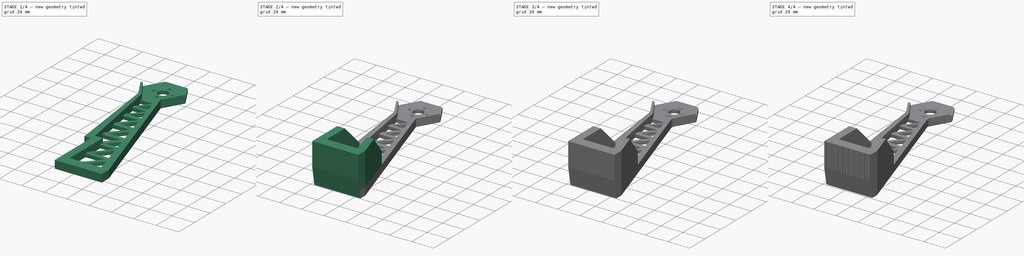
[diagram: build sequence overview — one tinted view per stage of 4, left to right]
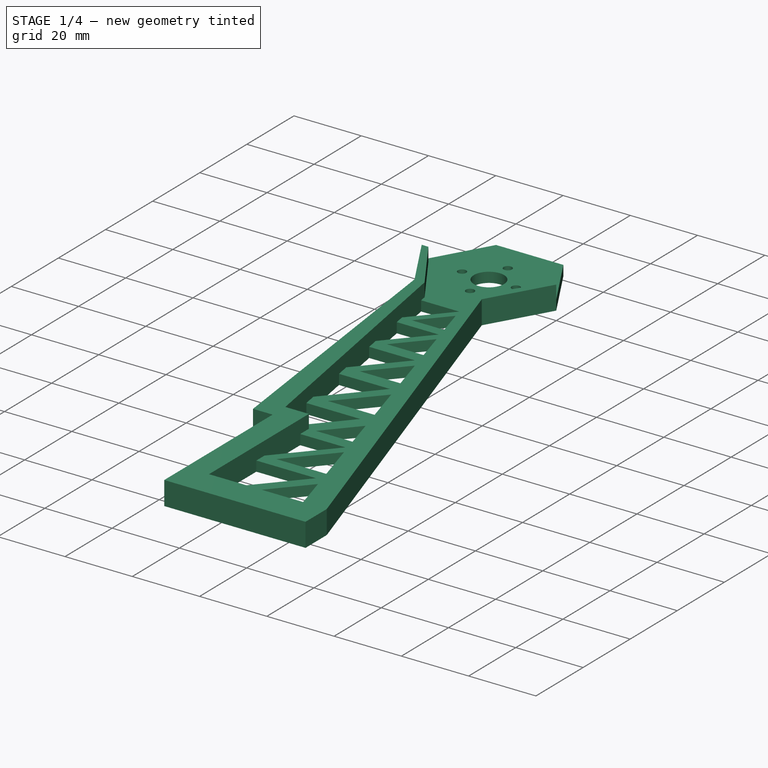
[diagram: stage 1 of 4 — iso view after this stage's code; geometry added in this stage tinted green]
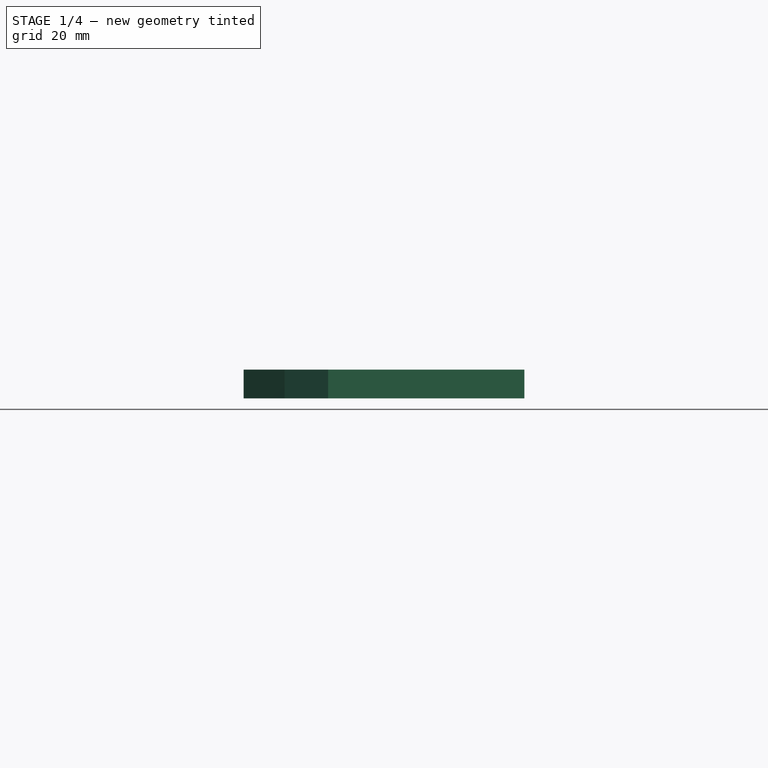
[diagram: stage 1 of 4 — front view after this stage's code; geometry added in this stage tinted green]
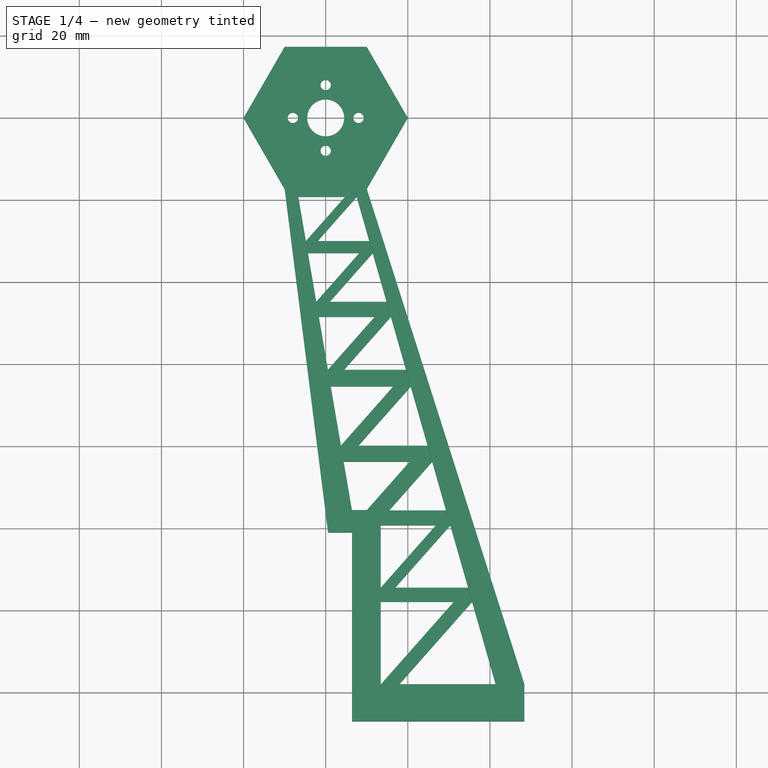
[diagram: stage 1 of 4 — top view after this stage's code; geometry added in this stage tinted green]
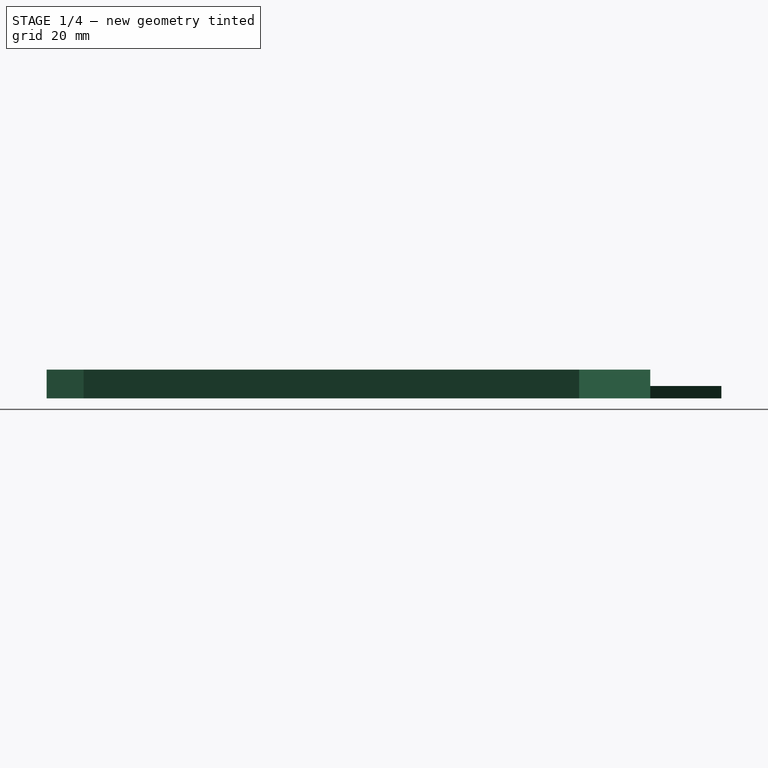
[diagram: stage 1 of 4 — right view after this stage's code; geometry added in this stage tinted green]
FCSTD DOCUMENT  (FreeCAD 0.16R6706 (Git))
Label: motor_mount
License: All rights reserved
LicenseURL: http://en.wikipedia.org/wiki/All_rights_reserved
objects: Sketcher::SketchObject×6, PartDesign::Chamfer×4, PartDesign::Pad×3, PartDesign::Pocket×3, PartDesign::Fillet×2
note: 24 computed .brp shape members not serialized (recipe doc carries the construction recipe); baked Part::Feature solids carry a one-line shape summary decoded from their .brp

FEATURE [Sketcher::SketchObject] Sketch
  sketch-geometry (21):
    g0: Circle CenterX=0 CenterY=8 CenterZ=0 NormalX=0 NormalY=0 NormalZ=1 Radius=1.25
    g1: Circle CenterX=8 CenterY=0 CenterZ=0 NormalX=0 NormalY=0 NormalZ=1 Radius=1.25
    g2: Circle CenterX=0 CenterY=-8 CenterZ=0 NormalX=0 NormalY=0 NormalZ=1 Radius=1.25
    g3: Circle CenterX=-8 CenterY=0 CenterZ=0 NormalX=0 NormalY=0 NormalZ=1 Radius=1.25
    g4: LineSegment [constr] StartX=0 StartY=8 StartZ=0 EndX=0 EndY=-8 EndZ=0
    g5: LineSegment [constr] StartX=8 StartY=0 StartZ=0 EndX=-8 EndY=0 EndZ=0
    g6: LineSegment StartX=10 StartY=17.3205 StartZ=0 EndX=-10 EndY=17.3205 EndZ=0
    g7: LineSegment StartX=-10 StartY=17.3205 StartZ=0 EndX=-20 EndY=0 EndZ=0
    g8: LineSegment StartX=-20 StartY=0 StartZ=0 EndX=-10 EndY=-17.3205 EndZ=0
    g9: LineSegment [constr] StartX=-10 StartY=-17.3205 StartZ=0 EndX=10 EndY=-17.3205 EndZ=0
    g10: LineSegment StartX=10 StartY=-17.3205 StartZ=0 EndX=20 EndY=0 EndZ=0
    g11: LineSegment StartX=20 StartY=0 StartZ=0 EndX=10 EndY=17.3205 EndZ=0
    g12: Circle [constr] CenterX=0 CenterY=0 CenterZ=0 NormalX=0 NormalY=0 NormalZ=1 Radius=20
    g13: LineSegment [constr] StartX=-10 StartY=-17.3205 StartZ=0 EndX=6.4 EndY=-147 EndZ=0
    g14: LineSegment StartX=6.4 StartY=-147 StartZ=0 EndX=48.4 EndY=-147 EndZ=0
    g15: LineSegment StartX=48.4 StartY=-138 StartZ=0 EndX=10 EndY=-17.3205 EndZ=0
    g16: Circle CenterX=0 CenterY=0 CenterZ=0 NormalX=0 NormalY=0 NormalZ=1 Radius=4.5
    g17: LineSegment StartX=6.4 StartY=-147 StartZ=0 EndX=6.4 EndY=-101 EndZ=0
    g18: LineSegment StartX=6.4 StartY=-101 StartZ=0 EndX=0.582581 EndY=-101 EndZ=0
    g19: LineSegment StartX=0.582581 StartY=-101 StartZ=0 EndX=-10 EndY=-17.3205 EndZ=0
    g20: LineSegment StartX=48.4 StartY=-147 StartZ=0 EndX=48.4 EndY=-138 EndZ=0
  constraints (53):
    c: PointOnObject(g0,g-2)
    c: PointOnObject(g1,g-1)
    c: PointOnObject(g2,g-2)
    c: PointOnObject(g3,g-1)
    c: Symmetric(g0,g2,g-1)
    c: Symmetric(g1,g3,g-2)
    c: Radius(g3) = 1.25
    c: Equal(g3,g0)
    c: Equal(g0,g1)
    c: Equal(g1,g2)
    c: Coincident(g4,g0)
    c: Coincident(g4,g2)
    c: Coincident(g5,g1)
    c: Coincident(g5,g3)
    c: Equal(g5,g4)
    c: Distance(g4) = 16
    c: Coincident(g6,g7)
    c: Coincident(g7,g8)
    c: Coincident(g8,g9)
    c: Coincident(g9,g10)
    c: Coincident(g10,g11)
    c: Coincident(g11,g6)
    c: Equal(g6, g7-g11) x5
    c: PointOnObject(g6,g12)
    c: PointOnObject(g7,g12)
    c: PointOnObject(g8,g12)
    c: PointOnObject(g9,g12)
    c: PointOnObject(g10,g12)
    c: PointOnObject(g11,g12)
    c: Coincident(g12,g-1)
    c: PointOnObject(g10,g-1)
    c: Radius(g12) = 20
    c: Coincident(g8,g13)
    c: Coincident(g13,g14)
    c: Horizontal(g14)
    c: Coincident(g15,g9)
    c: Coincident(g16,g-1)
    c: Radius(g16) = 4.5
    c: DistanceY(g13,g-1) = 147
    c: DistanceX(g-1,g13) = 6.4
    c: Coincident(g17,g13)
    c: Vertical(g17)
    c: Distance(g17) = 46
    c: Coincident(g17,g18)
    c: PointOnObject(g18,g13)
    c: Horizontal(g18)
    c: Coincident(g18,g19)
    c: Coincident(g19,g8)
    c: Vertical(g20)
    c: Coincident(g15,g20)
    c: Coincident(g14,g20)
    c: Distance(g14) = 42
    c: Distance(g20) = 9
FEATURE [PartDesign::Pad] Pad
  Length = 3
  Length2 = 100
  Sketch = -> Sketch
  Type = 0
FEATURE [Sketcher::SketchObject] Sketch001
  ExternalGeometry = -> [Pad]
  Placement = pos=(0,0,3) rot=(0,0,1;0rad)
  Support = -> Pad [Face18]
  sketch-geometry (26):
    g0: LineSegment [constr] StartX=-10 StartY=-17.3205 StartZ=0 EndX=-7 EndY=-17.3205 EndZ=0
    g1: LineSegment [constr] StartX=10 StartY=-17.3205 StartZ=0 EndX=7 EndY=-17.3205 EndZ=0
    g2: LineSegment [constr] StartX=48.4 StartY=-147 StartZ=0 EndX=41.4 EndY=-147 EndZ=0
    g3: LineSegment [constr] StartX=6.4 StartY=-147 StartZ=0 EndX=13.4 EndY=-147 EndZ=0
    g4: LineSegment [constr] StartX=48.4 StartY=-138 StartZ=0 EndX=6.4 EndY=-138 EndZ=0
    g5: LineSegment StartX=-20 StartY=0 StartZ=0 EndX=-18 EndY=0 EndZ=0
    g6: LineSegment StartX=-18 StartY=0 StartZ=0 EndX=-7 EndY=-17.3205 EndZ=0
    g7: LineSegment StartX=-7 StartY=-17.3205 StartZ=0 EndX=6.4 EndY=-95.6026 EndZ=0
    g8: LineSegment StartX=6.4 StartY=-95.6026 StartZ=0 EndX=13.4 EndY=-95.6026 EndZ=0
    g9: LineSegment StartX=13.4 StartY=-95.6026 StartZ=0 EndX=13.4 EndY=-138 EndZ=0
    g10: LineSegment StartX=13.4 StartY=-138 StartZ=0 EndX=41.4 EndY=-138 EndZ=0
    g11: LineSegment StartX=41.4 StartY=-138 StartZ=0 EndX=7 EndY=-17.3205 EndZ=0
    g12: LineSegment StartX=7 StartY=-17.3205 StartZ=0 EndX=18 EndY=0 EndZ=0
    g13: LineSegment StartX=18 StartY=0 StartZ=0 EndX=20 EndY=0 EndZ=0
    g14: LineSegment StartX=20 StartY=0 StartZ=0 EndX=10 EndY=-17.3205 EndZ=0
    g15: LineSegment StartX=10 StartY=-17.3205 StartZ=0 EndX=48.4 EndY=-138 EndZ=0
    g16: LineSegment StartX=48.4 StartY=-138 StartZ=0 EndX=48.4 EndY=-147 EndZ=0
    g17: LineSegment StartX=48.4 StartY=-147 StartZ=0 EndX=6.4 EndY=-147 EndZ=0
    g18: LineSegment StartX=6.4 StartY=-147 StartZ=0 EndX=6.4 EndY=-101 EndZ=0
    g19: LineSegment StartX=6.4 StartY=-101 StartZ=0 EndX=0.582581 EndY=-101 EndZ=0
    g20: LineSegment StartX=0.582581 StartY=-101 StartZ=0 EndX=-10 EndY=-17.3205 EndZ=0
    g21: LineSegment StartX=-10 StartY=-17.3205 StartZ=0 EndX=-20 EndY=0 EndZ=0
    g22: LineSegment [constr] StartX=6.4 StartY=-95.6026 StartZ=0 EndX=-0.1 EndY=-95.6026 EndZ=0
    g23: LineSegment [constr] StartX=41.4 StartY=-147 StartZ=0 EndX=41.4 EndY=-138 EndZ=0
    g24: LineSegment [constr] StartX=13.4 StartY=-147 StartZ=0 EndX=13.4 EndY=-138 EndZ=0
    g25: LineSegment [constr] StartX=6.4 StartY=-95.6026 StartZ=0 EndX=6.4 EndY=-101 EndZ=0
  constraints (64):
    c: Coincident(g0,g-3)
    c: Horizontal(g0)
    c: Coincident(g1,g-5)
    c: Horizontal(g1)
    c: Equal(g1,g0)
    c: Distance(g1) = 3
    c: Coincident(g2,g-8)
    c: Horizontal(g2)
    c: Coincident(g3,g-9)
    c: Horizontal(g3)
    c: Distance(g2) = 7
    c: Coincident(g4,g-7)
    c: Horizontal(g4)
    c: DistanceX(g4,g3) = 0
    c: Equal(g3,g2)
    c: Coincident(g5,g-4)
    c: PointOnObject(g5,g-1)
    c: Coincident(g5,g6)
    c: Coincident(g6,g0)
    c: Coincident(g6,g7)
    c: Coincident(g7,g8)
    c: Horizontal(g8)
    c: Coincident(g8,g9)
    c: PointOnObject(g9,g4)
    c: Coincident(g9,g10)
    c: PointOnObject(g10,g4)
    c: Coincident(g10,g11)
    c: Coincident(g11,g1)
    c: Coincident(g11,g12)
    c: PointOnObject(g12,g-1)
    c: Coincident(g12,g13)
    c: Coincident(g13,g-6)
    c: Coincident(g13,g14)
    c: Coincident(g14,g1)
    c: Coincident(g14,g15)
    c: Coincident(g15,g4)
    c: Coincident(g15,g16)
    c: Coincident(g16,g2)
    c: Coincident(g16,g17)
    c: Coincident(g17,g3)
    c: Coincident(g17,g18)
    c: Coincident(g18,g-11)
    c: Coincident(g18,g19)
    c: Coincident(g19,g-10)
    c: Coincident(g19,g20)
    c: Coincident(g20,g0)
    c: Coincident(g20,g21)
    c: Coincident(g21,g5)
    c: Vertical(g9)
    c: Distance(g5) = 2
    c: Equal(g13,g5)
    c: Coincident(g22,g7)
    c: PointOnObject(g22,g20)
    c: Horizontal(g22)
    c: Distance(g22) = 6.5
    c: Vertical(g23)
    c: Coincident(g23,g10)
    c: Coincident(g24,g3)
    c: Coincident(g24,g9)
    c: Vertical(g24)
    c: Coincident(g2,g23)
    c: Coincident(g25,g7)
    c: Coincident(g25,g18)
    c: Vertical(g25)
FEATURE [PartDesign::Pad] Pad001
  Length = 4
  Length2 = 100
  Sketch = -> Sketch001
  Type = 0
FEATURE [Sketcher::SketchObject] Sketch002
  ExternalGeometry = -> [Pad001]
  Placement = pos=(0,0,3) rot=(0,0,1;0rad)
  Support = -> Pad001 [Face22]
  sketch-geometry (58):
    g0: LineSegment [constr] StartX=-7 StartY=-17.3205 StartZ=0 EndX=7 EndY=-17.3205 EndZ=0
    g1: LineSegment [constr] StartX=6.4 StartY=-95.6026 StartZ=0 EndX=13.4 EndY=-95.6026 EndZ=0
    g2: LineSegment StartX=4.6596 StartY=-19.2741 StartZ=0 EndX=-4.82886 EndY=-30.0042 EndZ=0
    g3: LineSegment StartX=-4.32086 StartY=-32.9719 StartZ=0 EndX=8.15283 EndY=-32.9719 EndZ=0
    g4: LineSegment StartX=11.4615 StartY=-32.9719 StartZ=0 EndX=1.01078 EndY=-44.7901 EndZ=0
    g5: LineSegment StartX=-1.66563 StartY=-48.4837 StartZ=0 EndX=11.9164 EndY=-48.4837 EndZ=0
    g6: LineSegment StartX=15.8831 StartY=-48.4837 StartZ=0 EndX=4.50388 EndY=-61.3519 EndZ=0
    g7: LineSegment StartX=1.2395 StartY=-65.4553 StartZ=0 EndX=16.4112 EndY=-65.4553 EndZ=0
    g8: LineSegment StartX=20.7209 StartY=-65.4553 StartZ=0 EndX=8.00982 EndY=-79.8297 EndZ=0
    g9: LineSegment StartX=4.37591 StartY=-83.778 StartZ=0 EndX=20.4123 EndY=-83.778 EndZ=0
    g10: LineSegment StartX=26.8149 StartY=-99.2677 StartZ=0 EndX=13.4 EndY=-114.438 EndZ=0
    g11: LineSegment StartX=16.9444 StartY=-114.438 StartZ=0 EndX=34.6836 EndY=-114.438 EndZ=0
    g12: LineSegment StartX=31.1597 StartY=-117.916 StartZ=0 EndX=13.4 EndY=-138 EndZ=0
    g13: LineSegment StartX=-6.66559 StartY=-19.2741 StartZ=0 EndX=4.6596 EndY=-19.2741 EndZ=0
    g14: LineSegment StartX=7.55688 StartY=-19.2741 StartZ=0 EndX=-1.93159 EndY=-30.0042 EndZ=0
    g15: LineSegment StartX=8.15283 StartY=-32.9719 StartZ=0 EndX=-2.29787 EndY=-44.7901 EndZ=0
    g16: LineSegment StartX=1.01078 StartY=-44.7901 StartZ=0 EndX=14.8303 EndY=-44.7901 EndZ=0
    g17: LineSegment StartX=11.9164 StartY=-48.4837 StartZ=0 EndX=0.53711 EndY=-61.3519 EndZ=0
    g18: LineSegment StartX=4.50388 StartY=-61.3519 StartZ=0 EndX=19.5513 EndY=-61.3519 EndZ=0
    g19: LineSegment StartX=16.4112 StartY=-65.4553 StartZ=0 EndX=3.70006 EndY=-79.8297 EndZ=0
    g20: LineSegment StartX=8.00982 StartY=-79.8297 StartZ=0 EndX=24.8184 EndY=-79.8297 EndZ=0
    g21: LineSegment StartX=20.4123 StartY=-83.778 StartZ=0 EndX=9.95594 EndY=-95.6026 EndZ=0
    g22: LineSegment StartX=25.9439 StartY=-83.778 StartZ=0 EndX=15.4875 EndY=-95.6026 EndZ=0
    g23: LineSegment StartX=13.4 StartY=-99.2677 StartZ=0 EndX=26.8149 EndY=-99.2677 EndZ=0
    g24: LineSegment StartX=30.3592 StartY=-99.2677 StartZ=0 EndX=16.9444 EndY=-114.438 EndZ=0
    g25: LineSegment StartX=13.4 StartY=-117.916 StartZ=0 EndX=31.1597 EndY=-117.916 EndZ=0
    g26: LineSegment StartX=35.6751 StartY=-117.916 StartZ=0 EndX=17.9154 EndY=-138 EndZ=0
    g27: LineSegment StartX=-1.93159 StartY=-30.0042 StartZ=0 EndX=10.6155 EndY=-30.0042 EndZ=0
    g28: LineSegment StartX=15.4875 StartY=-95.6026 StartZ=0 EndX=29.3145 EndY=-95.6026 EndZ=0
    g29: LineSegment [constr] StartX=4.6596 StartY=-19.2741 StartZ=0 EndX=7.55688 EndY=-19.2741 EndZ=0
    g30: LineSegment [constr] StartX=-1.93159 StartY=-30.0042 StartZ=0 EndX=-4.82886 EndY=-30.0042 EndZ=0
    g31: LineSegment [constr] StartX=8.15283 StartY=-32.9719 StartZ=0 EndX=11.4615 EndY=-32.9719 EndZ=0
    g32: LineSegment [constr] StartX=1.01078 StartY=-44.7901 StartZ=0 EndX=-2.29787 EndY=-44.7901 EndZ=0
    g33: LineSegment [constr] StartX=11.9164 StartY=-48.4837 StartZ=0 EndX=15.8831 EndY=-48.4837 EndZ=0
    g34: LineSegment [constr] StartX=4.50388 StartY=-61.3519 StartZ=0 EndX=0.53711 EndY=-61.3519 EndZ=0
    g35: LineSegment [constr] StartX=16.4112 StartY=-65.4553 StartZ=0 EndX=20.7209 EndY=-65.4553 EndZ=0
    g36: LineSegment [constr] StartX=8.00982 StartY=-79.8297 StartZ=0 EndX=3.70006 EndY=-79.8297 EndZ=0
    g37: LineSegment [constr] StartX=20.4123 StartY=-83.778 StartZ=0 EndX=25.9439 EndY=-83.778 EndZ=0
    g38: LineSegment [constr] StartX=15.4875 StartY=-95.6026 StartZ=0 EndX=13.4 EndY=-95.6026 EndZ=0
    g39: LineSegment [constr] StartX=26.8149 StartY=-99.2677 StartZ=0 EndX=30.3592 EndY=-99.2677 EndZ=0
    g40: LineSegment [constr] StartX=16.9444 StartY=-114.438 StartZ=0 EndX=13.4 EndY=-114.438 EndZ=0
    g41: LineSegment [constr] StartX=31.1597 StartY=-117.916 StartZ=0 EndX=35.6751 EndY=-117.916 EndZ=0
    g42: LineSegment StartX=-6.66559 StartY=-19.2741 StartZ=0 EndX=-4.82886 EndY=-30.0042 EndZ=0
    g43: LineSegment StartX=7.55688 StartY=-19.2741 StartZ=0 EndX=10.6155 EndY=-30.0042 EndZ=0
    g44: LineSegment StartX=-4.32086 StartY=-32.9719 StartZ=0 EndX=-2.29787 EndY=-44.7901 EndZ=0
    g45: LineSegment StartX=11.4615 StartY=-32.9719 StartZ=0 EndX=14.8303 EndY=-44.7901 EndZ=0
    g46: LineSegment StartX=-1.66563 StartY=-48.4837 StartZ=0 EndX=0.53711 EndY=-61.3519 EndZ=0
    g47: LineSegment StartX=15.8831 StartY=-48.4837 StartZ=0 EndX=19.5513 EndY=-61.3519 EndZ=0
    g48: LineSegment StartX=1.2395 StartY=-65.4553 StartZ=0 EndX=3.70006 EndY=-79.8297 EndZ=0
    g49: LineSegment StartX=20.7209 StartY=-65.4553 StartZ=0 EndX=24.8184 EndY=-79.8297 EndZ=0
    g50: LineSegment StartX=4.37591 StartY=-83.778 StartZ=0 EndX=6.4 EndY=-95.6026 EndZ=0
    g51: LineSegment StartX=6.4 StartY=-95.6026 StartZ=0 EndX=9.95594 EndY=-95.6026 EndZ=0
    g52: LineSegment StartX=25.9439 StartY=-83.778 StartZ=0 EndX=29.3145 EndY=-95.6026 EndZ=0
    g53: LineSegment StartX=13.4 StartY=-99.2677 StartZ=0 EndX=13.4 EndY=-114.438 EndZ=0
    g54: LineSegment StartX=30.3592 StartY=-99.2677 StartZ=0 EndX=34.6836 EndY=-114.438 EndZ=0
    g55: LineSegment StartX=13.4 StartY=-117.916 StartZ=0 EndX=13.4 EndY=-138 EndZ=0
    g56: LineSegment StartX=17.9154 StartY=-138 StartZ=0 EndX=41.4 EndY=-138 EndZ=0
    g57: LineSegment StartX=41.4 StartY=-138 StartZ=0 EndX=35.6751 EndY=-117.916 EndZ=0
  constraints (140):
    c: Coincident(g31,g3)
    c: Coincident(g3,g15)
    c: Coincident(g4,g16)
    c: Coincident(g4,g32)
    c: Coincident(g2,g13)
    c: Coincident(g2,g29)
    c: Coincident(g14,g27)
    c: Coincident(g14,g30)
    c: Coincident(g5,g17)
    c: Coincident(g6,g18)
    c: Coincident(g7,g19)
    c: Horizontal(g13)
    c: Horizontal(g27)
    c: Horizontal(g3)
    c: Horizontal(g16)
    c: Horizontal(g5)
    c: Horizontal(g18)
    c: Horizontal(g7)
    c: Horizontal(g20)
    c: Horizontal(g9)
    c: Horizontal(g28)
    c: Horizontal(g23)
    c: Horizontal(g11)
    c: Horizontal(g25)
    c: Parallel(g26,g12)
    c: Parallel(g12,g24)
    c: Parallel(g24,g10)
    c: Parallel(g10,g22)
    c: Parallel(g22,g21)
    c: Parallel(g21,g8)
    c: Parallel(g8,g19)
    c: Parallel(g19,g6)
    c: Parallel(g6,g17)
    c: Parallel(g17,g4)
    c: Parallel(g4,g15)
    c: Parallel(g15,g14)
    c: Parallel(g14,g2)
    c: Coincident(g14,g29)
    c: Horizontal(g29)
    c: Coincident(g2,g30)
    c: PointOnObject(g2,g-3)
    c: Horizontal(g30)
    c: PointOnObject(g13,g-3)
    c: PointOnObject(g14,g-4)
    c: PointOnObject(g27,g-4)
    c: PointOnObject(g3,g-3)
    c: PointOnObject(g31,g-4)
    c: Coincident(g15,g32)
    c: PointOnObject(g15,g-3)
    c: PointOnObject(g16,g-4)
    c: PointOnObject(g6,g-4)
    c: PointOnObject(g5,g-3)
    c: PointOnObject(g17,g-3)
    c: PointOnObject(g18,g-4)
    c: PointOnObject(g7,g-3)
    c: PointOnObject(g8,g-4)
    c: PointOnObject(g19,g-3)
    c: PointOnObject(g20,g-4)
    c: PointOnObject(g9,g-3)
    c: PointOnObject(g37,g-4)
    c: Coincident(g1,g-5)
    c: Coincident(g1,g-3)
    c: PointOnObject(g21,g1)
    c: PointOnObject(g52,g-4)
    c: PointOnObject(g28,g-4)
    c: PointOnObject(g23,g-5)
    c: PointOnObject(g24,g-4)
    c: PointOnObject(g10,g-5)
    c: PointOnObject(g25,g-5)
    c: PointOnObject(g11,g-4)
    c: PointOnObject(g26,g-4)
    c: PointOnObject(g26,g-6)
    c: Coincident(g12,g-6)
    c: Coincident(g12,g25)
    c: Coincident(g10,g23)
    c: Coincident(g9,g21)
    c: Coincident(g33,g5)
    c: Coincident(g33,g6)
    c: Horizontal(g33)
    c: Coincident(g34,g6)
    c: Coincident(g34,g17)
    c: Horizontal(g34)
    c: Coincident(g35,g7)
    c: Coincident(g35,g8)
    c: Horizontal(g35)
    c: Coincident(g36,g20)
    c: Coincident(g36,g19)
    c: Horizontal(g36)
    c: Coincident(g37,g9)
    c: Horizontal(g37)
    c: Coincident(g38,g28)
    c: Coincident(g38,g1)
    c: Horizontal(g38)
    c: Coincident(g39,g10)
    c: Coincident(g39,g24)
    c: Coincident(g40,g24)
    c: Coincident(g40,g10)
    c: Horizontal(g40)
    c: Coincident(g41,g12)
    c: Coincident(g41,g26)
    c: Horizontal(g41)
    c: Horizontal(g39)
    c: Coincident(g42,g13)
    c: Coincident(g42,g2)
    c: Coincident(g43,g14)
    c: Coincident(g43,g27)
    c: Coincident(g44,g3)
    c: Coincident(g44,g15)
    c: Coincident(g45,g4)
    c: Coincident(g45,g16)
    c: Coincident(g46,g5)
    c: Coincident(g46,g17)
    c: Coincident(g47,g6)
    c: Coincident(g47,g18)
    c: Coincident(g48,g7)
    c: Coincident(g48,g19)
    c: Coincident(g49,g8)
    c: Coincident(g49,g20)
    c: Coincident(g50,g9)
    c: Coincident(g50,g1)
    c: Coincident(g51,g1)
    c: Coincident(g51,g21)
    c: Coincident(g52,g22)
    c: Coincident(g53,g23)
    c: Coincident(g53,g10)
    c: Coincident(g54,g24)
    c: Coincident(g54,g11)
    c: Coincident(g55,g25)
    c: Coincident(g55,g12)
    c: Coincident(g56,g26)
    c: Coincident(g56,g-6)
    c: Coincident(g57,g56)
    c: Coincident(g57,g26)
    c: Coincident(g4,g31)
    c: Coincident(g22,g37)
    c: Coincident(g8,g20)
    c: Coincident(g11,g24)
    c: Coincident(g22,g28)
    c: Horizontal(g32)
    c: Horizontal(g31)
FEATURE [PartDesign::Pocket] Pocket
  Length = 0
  Sketch = -> Sketch002
  Type = 3
  UpToFace = -> Pad001 [Face1]
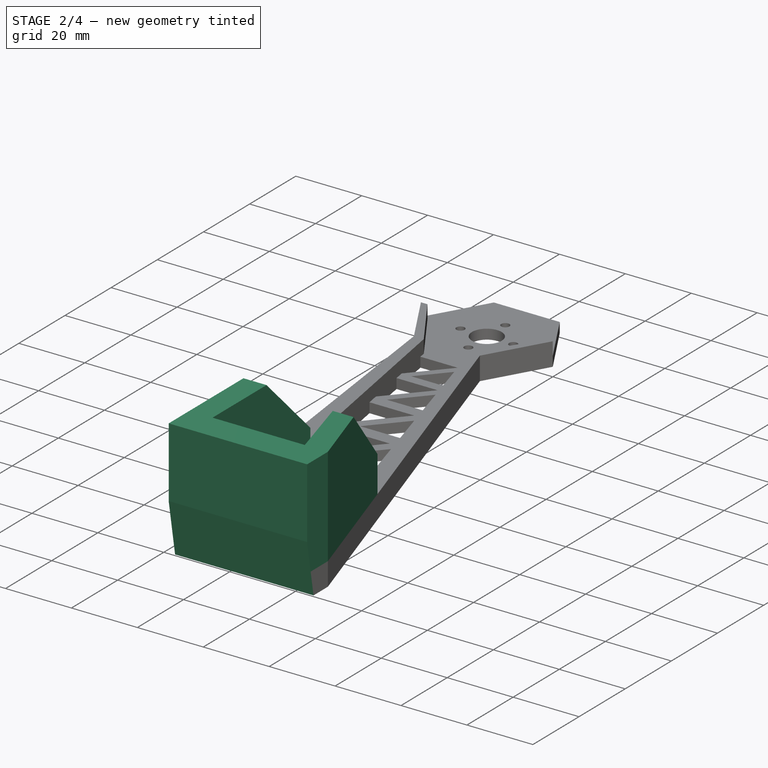
[diagram: stage 2 of 4 — iso view after this stage's code; geometry added in this stage tinted green]
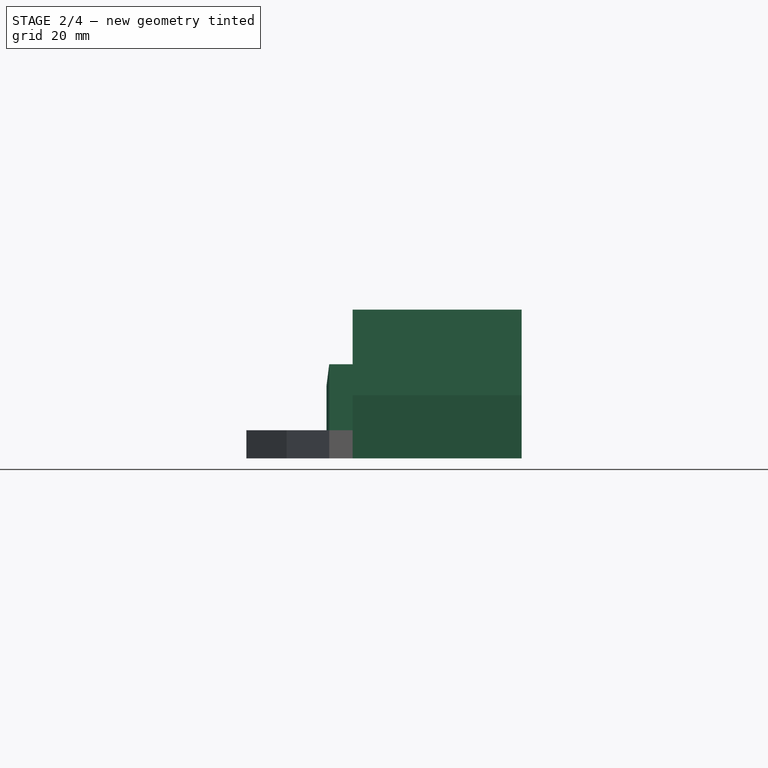
[diagram: stage 2 of 4 — front view after this stage's code; geometry added in this stage tinted green]
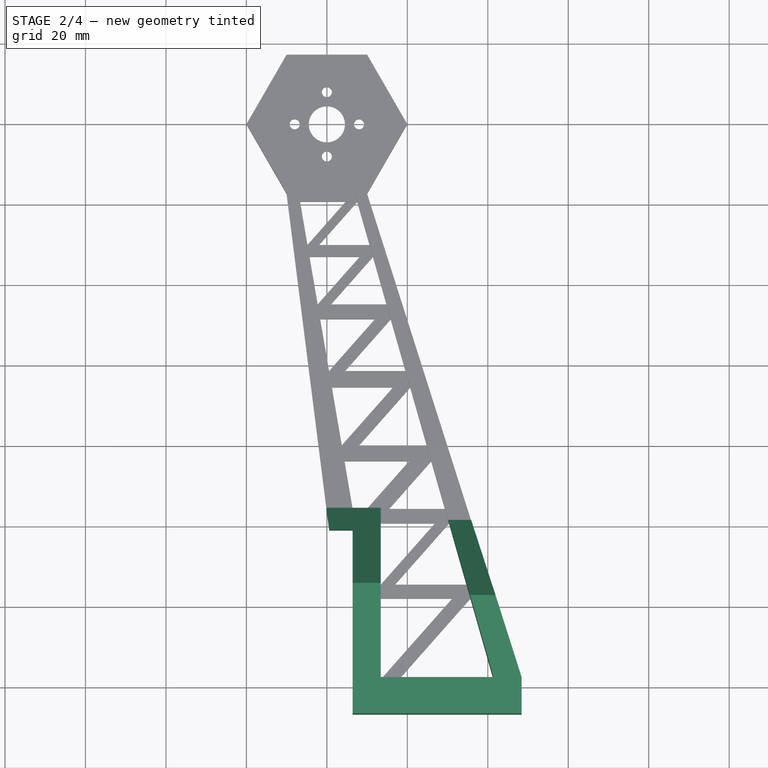
[diagram: stage 2 of 4 — top view after this stage's code; geometry added in this stage tinted green]
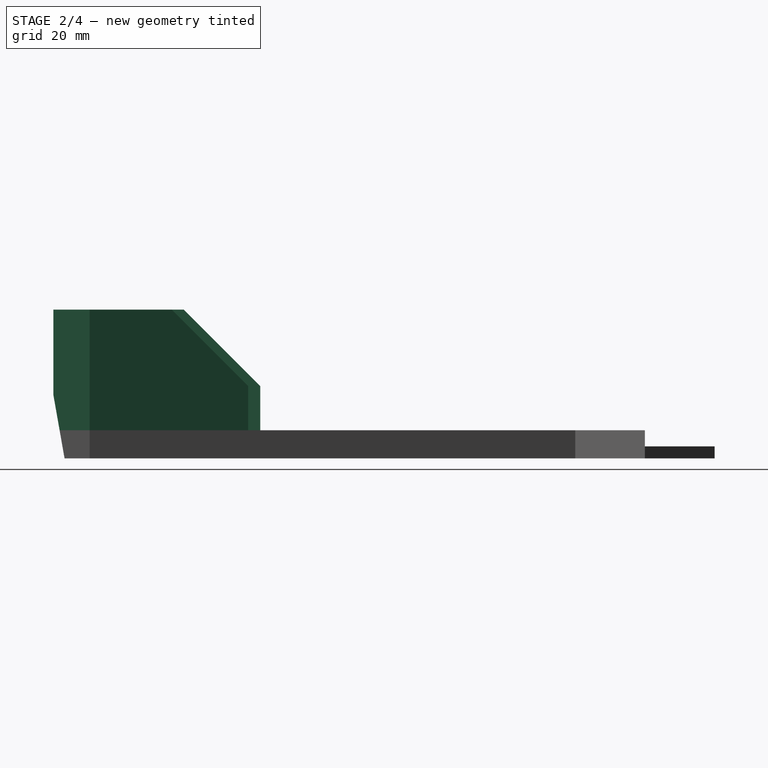
[diagram: stage 2 of 4 — right view after this stage's code; geometry added in this stage tinted green]
FEATURE [Sketcher::SketchObject] Sketch003
  ExternalGeometry = -> [Pocket]
  Placement = pos=(0,0,7) rot=(0,0,1;0rad)
  Support = -> Pocket [Face75]
  sketch-geometry (11):
    g0: LineSegment StartX=13.4 StartY=-95.6026 StartZ=0 EndX=-0.1 EndY=-95.6026 EndZ=0
    g1: LineSegment StartX=-0.1 StartY=-95.6026 StartZ=0 EndX=0.582581 EndY=-101 EndZ=0
    g2: LineSegment StartX=0.582581 StartY=-101 StartZ=0 EndX=6.4 EndY=-101 EndZ=0
    g3: LineSegment StartX=6.4 StartY=-101 StartZ=0 EndX=6.4 EndY=-147 EndZ=0
    g4: LineSegment StartX=6.4 StartY=-147 StartZ=0 EndX=48.4 EndY=-147 EndZ=0
    g5: LineSegment StartX=48.4 StartY=-147 StartZ=0 EndX=48.4 EndY=-138 EndZ=0
    g6: LineSegment StartX=48.4 StartY=-138 StartZ=0 EndX=35.8638 EndY=-98.6026 EndZ=0
    g7: LineSegment StartX=35.8638 StartY=-98.6026 StartZ=0 EndX=30.1697 EndY=-98.6026 EndZ=0
    g8: LineSegment StartX=30.1697 StartY=-98.6026 StartZ=0 EndX=41.4 EndY=-138 EndZ=0
    g9: LineSegment StartX=41.4 StartY=-138 StartZ=0 EndX=13.4 EndY=-138 EndZ=0
    g10: LineSegment StartX=13.4 StartY=-138 StartZ=0 EndX=13.4 EndY=-95.6026 EndZ=0
  constraints (26):
    c: PointOnObject(g7,g-12)
    c: PointOnObject(g0,g-13)
    c: Horizontal(g0)
    c: Coincident(g0,g1)
    c: Coincident(g1,g-13)
    c: Coincident(g1,g2)
    c: Coincident(g2,g-3)
    c: Coincident(g2,g3)
    c: Coincident(g3,g-7)
    c: Coincident(g3,g4)
    c: Coincident(g4,g-8)
    c: Coincident(g4,g5)
    c: Coincident(g5,g-11)
    c: Coincident(g5,g6)
    c: PointOnObject(g6,g-11)
    c: Coincident(g6,g7)
    c: Coincident(g7,g8)
    c: Coincident(g8,g-12)
    c: Coincident(g8,g9)
    c: Horizontal(g9)
    c: Coincident(g9,g10)
    c: Coincident(g10,g0)
    c: Vertical(g10)
    c: Horizontal(g7)
    c: DistanceY(g7,g0) = 3
    c: Coincident(g0,g-5)
FEATURE [PartDesign::Pad] Pad002
  Length = 30
  Length2 = 100
  Sketch = -> Sketch003
  Type = 0
FEATURE [Sketcher::SketchObject] Sketch004
  ExternalGeometry = -> [Pad002]
  Placement = pos=(6.4,0,0) rot=(0.57735,-0.57735,-0.57735;2.0944rad)
  Support = -> Pad002 [Face5]
  sketch-geometry (3):
    g0: LineSegment StartX=144.232 StartY=0 StartZ=0 EndX=147 EndY=15.7 EndZ=0
    g1: LineSegment StartX=147 StartY=15.7 StartZ=0 EndX=147 EndY=0 EndZ=0
    g2: LineSegment StartX=147 StartY=0 StartZ=0 EndX=144.232 EndY=0 EndZ=0
  constraints (8):
    c: PointOnObject(g0,g-4)
    c: PointOnObject(g0,g-3)
    c: Angle(g0) = 1.39626
    c: DistanceY(g0,g0) = 15.7
    c: Coincident(g0,g1)
    c: Coincident(g1,g-4)
    c: Coincident(g1,g2)
    c: Coincident(g2,g0)
FEATURE [PartDesign::Pocket] Pocket001
  Length = 0
  Sketch = -> Sketch004
  Type = 3
  UpToFace = -> Pad002 [Face7]
FEATURE [PartDesign::Chamfer] Chamfer
  Base = -> Pocket001 [Edge8,Edge1]
  Size = 19
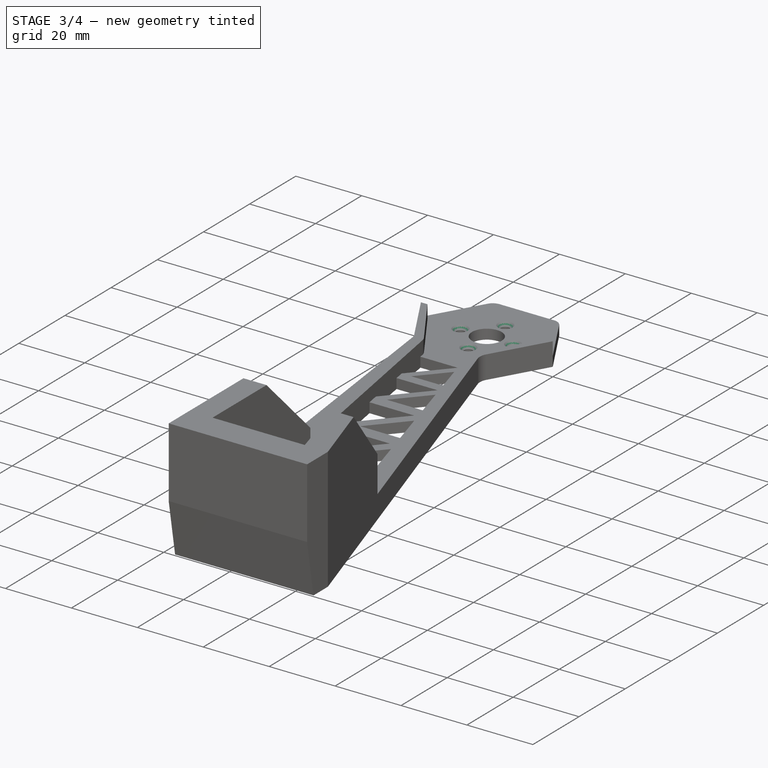
[diagram: stage 3 of 4 — iso view after this stage's code; geometry added in this stage tinted green]
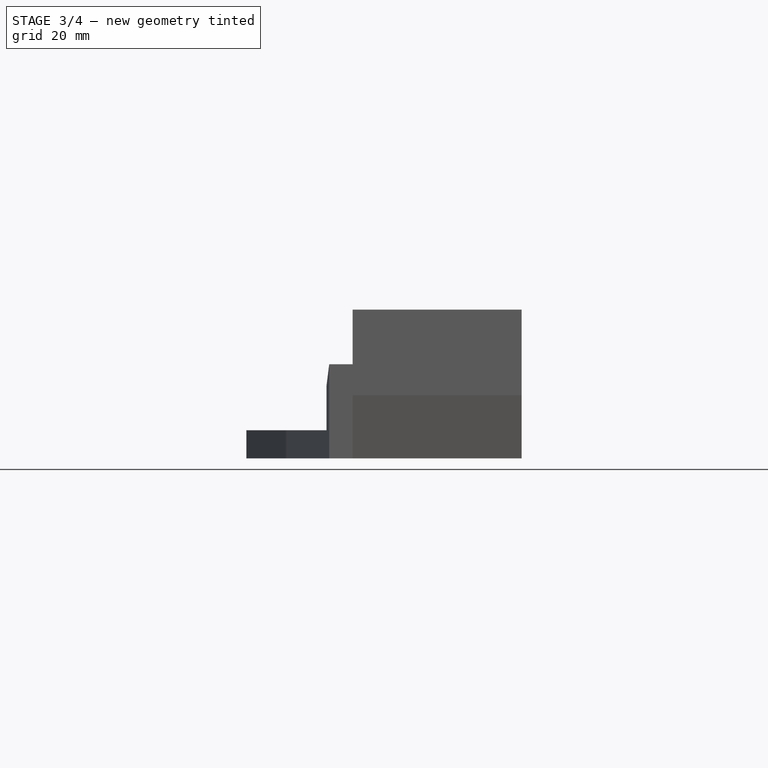
[diagram: stage 3 of 4 — front view after this stage's code; geometry added in this stage tinted green]
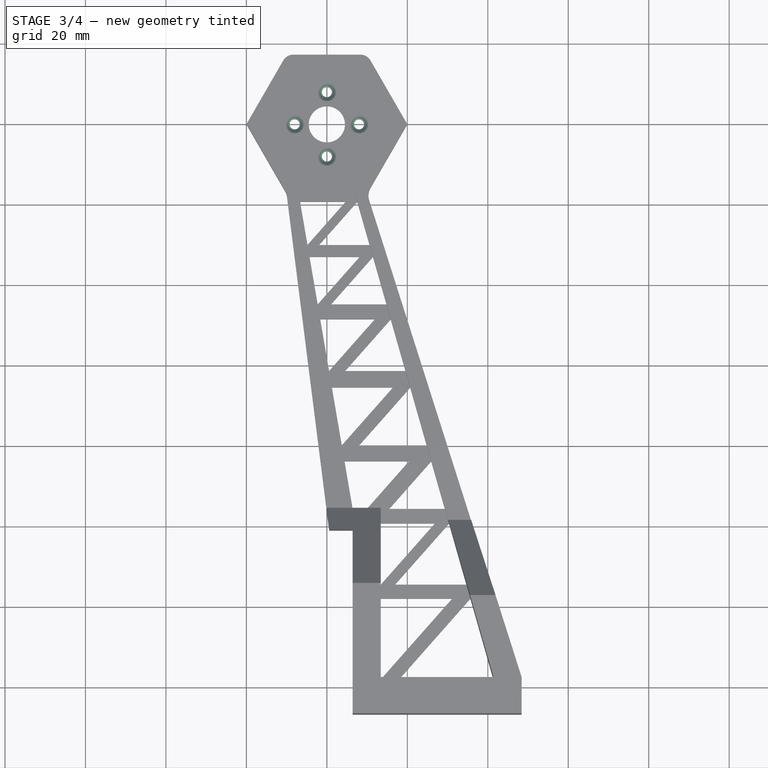
[diagram: stage 3 of 4 — top view after this stage's code; geometry added in this stage tinted green]
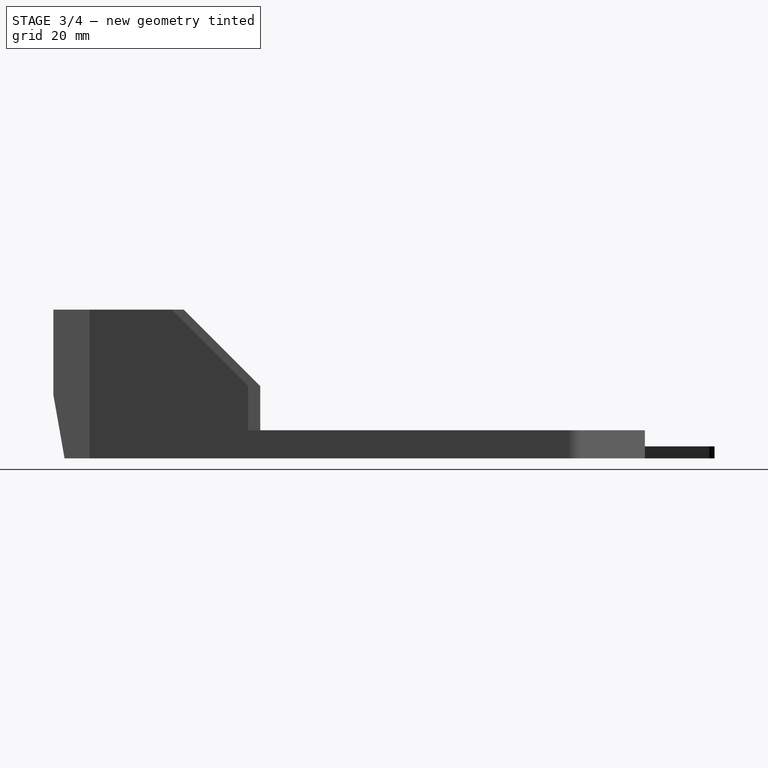
[diagram: stage 3 of 4 — right view after this stage's code; geometry added in this stage tinted green]
FEATURE [PartDesign::Fillet] Fillet
  Base = -> Chamfer [Edge224,Edge225]
  Radius = 3
FEATURE [PartDesign::Fillet] Fillet001
  Base = -> Fillet [Edge225,Edge86,Edge210,Edge67,Edge232,Edge240]
  Radius = 4
FEATURE [PartDesign::Chamfer] Chamfer001
  Base = -> Fillet001 [Edge149,Edge153,Edge155,Edge193]
  Size = 1
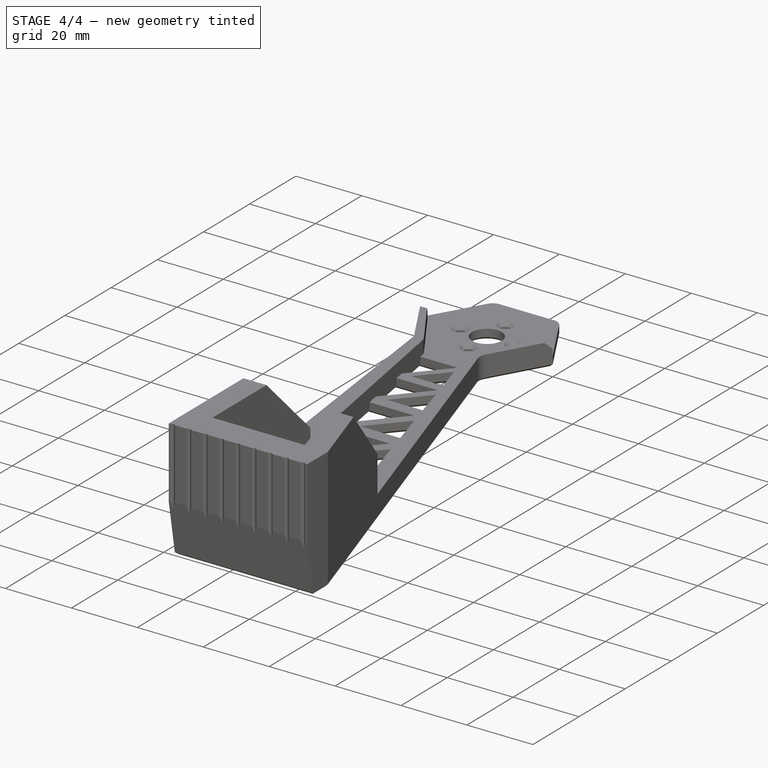
[diagram: stage 4 of 4 — iso view after this stage's code; geometry added in this stage tinted green]
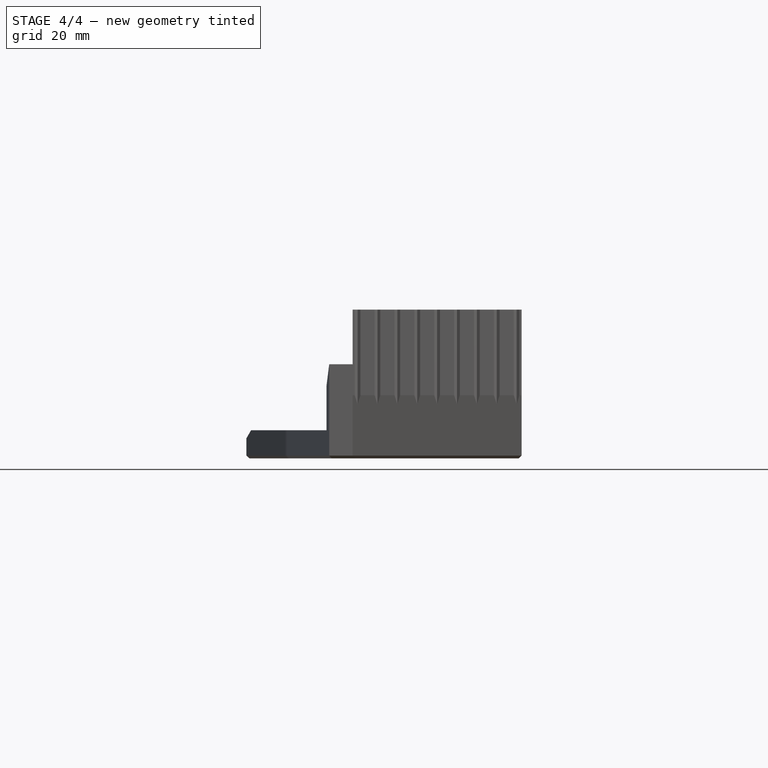
[diagram: stage 4 of 4 — front view after this stage's code; geometry added in this stage tinted green]
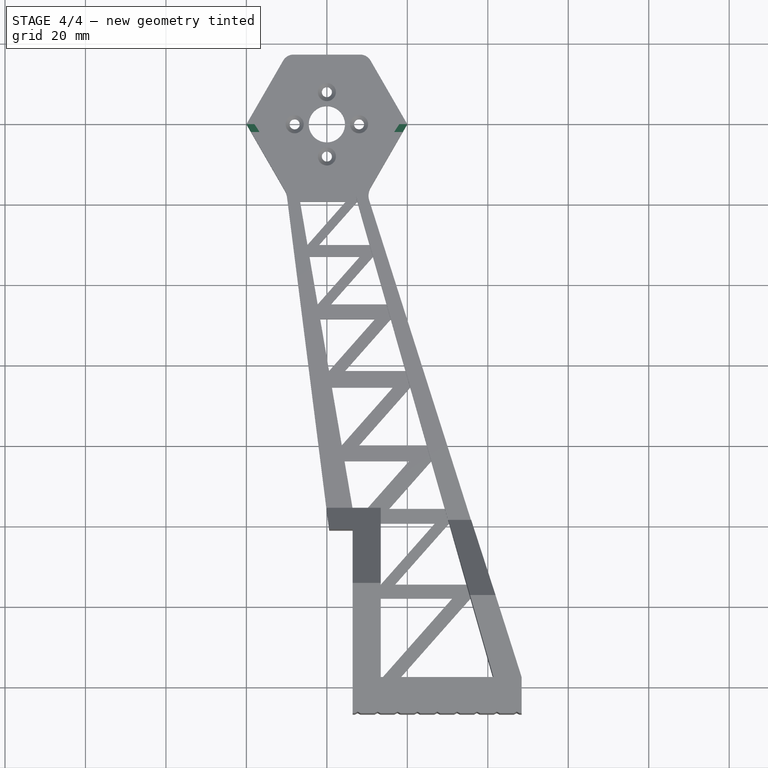
[diagram: stage 4 of 4 — top view after this stage's code; geometry added in this stage tinted green]
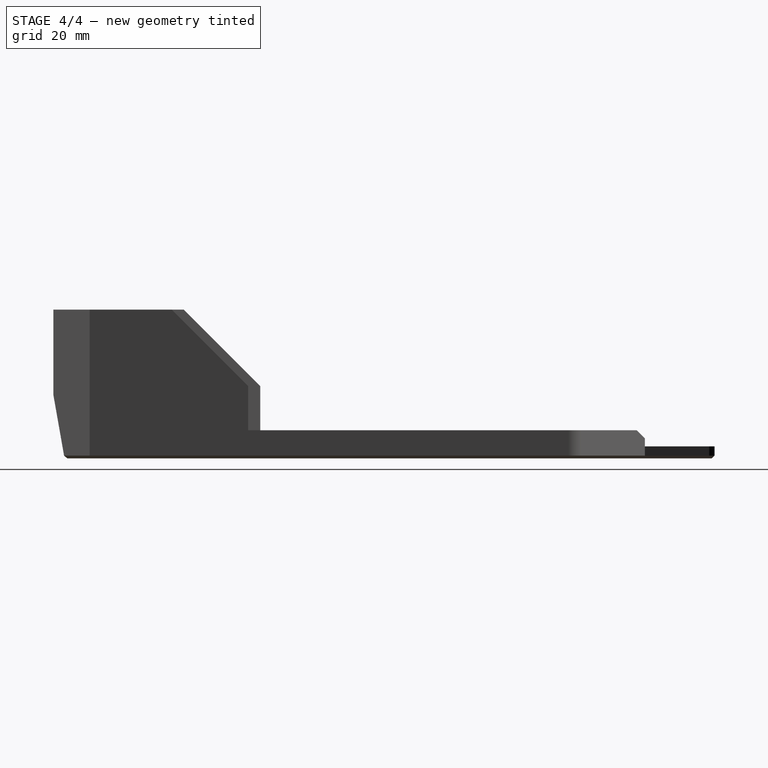
[diagram: stage 4 of 4 — right view after this stage's code; geometry added in this stage tinted green]
FEATURE [PartDesign::Chamfer] Chamfer002
  Base = -> Chamfer001 [Edge12,Edge10,Edge8,Edge16,Edge14,Edge18,Edge6,Edge7,Edge19,Edge20,Edge9,Edge46,Edge17,Edge15,Edge11,Edge13,Edge60,Edge58,Edge59,Edge55,Edge56,Edge57,Edge66,Edge64,Edge65,Edge62,Edge61,Edge63,Edge27,Edge25,Edge26,Edge22,Edge24,Edge23,Edge21,Edge33,Edge31,Edge32,Edge28,Edge29,+19 more]
  Size = 0.7
FEATURE [PartDesign::Chamfer] Chamfer003
  Base = -> Chamfer002 [Edge389,Edge388]
  Size = 2
FEATURE [Sketcher::SketchObject] Sketch006
  ExternalGeometry = -> [Chamfer003]
  Placement = pos=(0,0,37) rot=(0,0,1;0rad)
  Support = -> Chamfer003 [Face151]
  sketch-geometry (54):
    g0: LineSegment StartX=6.4 StartY=-147.3 StartZ=0 EndX=7.63529 EndY=-146.6 EndZ=0
    g1: LineSegment StartX=7.63529 StartY=-146.6 StartZ=0 EndX=8.87059 EndY=-147.3 EndZ=0
    g2: LineSegment [constr] StartX=8.87059 StartY=-147.3 StartZ=0 EndX=10.1059 EndY=-146.6 EndZ=0
    g3: LineSegment [constr] StartX=10.1059 StartY=-146.6 StartZ=0 EndX=11.3412 EndY=-147.3 EndZ=0
    g4: LineSegment StartX=11.3412 StartY=-147.3 StartZ=0 EndX=12.5765 EndY=-146.6 EndZ=0
    g5: LineSegment StartX=12.5765 StartY=-146.6 StartZ=0 EndX=13.8118 EndY=-147.3 EndZ=0
    g6: LineSegment [constr] StartX=13.8118 StartY=-147.3 StartZ=0 EndX=15.0471 EndY=-146.6 EndZ=0
    g7: LineSegment [constr] StartX=15.0471 StartY=-146.6 StartZ=0 EndX=16.2824 EndY=-147.3 EndZ=0
    g8: LineSegment StartX=16.2824 StartY=-147.3 StartZ=0 EndX=17.5176 EndY=-146.6 EndZ=0
    g9: LineSegment StartX=17.5176 StartY=-146.6 StartZ=0 EndX=18.7529 EndY=-147.3 EndZ=0
    g10: LineSegment [constr] StartX=18.7529 StartY=-147.3 StartZ=0 EndX=19.9882 EndY=-146.6 EndZ=0
    g11: LineSegment [constr] StartX=19.9882 StartY=-146.6 StartZ=0 EndX=21.2235 EndY=-147.3 EndZ=0
    g12: LineSegment StartX=21.2235 StartY=-147.3 StartZ=0 EndX=22.4588 EndY=-146.6 EndZ=0
    g13: LineSegment StartX=22.4588 StartY=-146.6 StartZ=0 EndX=23.6941 EndY=-147.3 EndZ=0
    g14: LineSegment [constr] StartX=23.6941 StartY=-147.3 StartZ=0 EndX=24.9294 EndY=-146.6 EndZ=0
    g15: LineSegment [constr] StartX=24.9294 StartY=-146.6 StartZ=0 EndX=26.1647 EndY=-147.3 EndZ=0
    g16: LineSegment StartX=26.1647 StartY=-147.3 StartZ=0 EndX=27.4 EndY=-146.6 EndZ=0
    g17: LineSegment StartX=27.4 StartY=-146.6 StartZ=0 EndX=28.6353 EndY=-147.3 EndZ=0
    g18: LineSegment [constr] StartX=28.6353 StartY=-147.3 StartZ=0 EndX=29.8706 EndY=-146.6 EndZ=0
    g19: LineSegment [constr] StartX=29.8706 StartY=-146.6 StartZ=0 EndX=31.1059 EndY=-147.3 EndZ=0
    g20: LineSegment StartX=31.1059 StartY=-147.3 StartZ=0 EndX=32.3412 EndY=-146.6 EndZ=0
    g21: LineSegment StartX=32.3412 StartY=-146.6 StartZ=0 EndX=33.5765 EndY=-147.3 EndZ=0
    g22: LineSegment [constr] StartX=33.5765 StartY=-147.3 StartZ=0 EndX=34.8118 EndY=-146.6 EndZ=0
    g23: LineSegment [constr] StartX=34.8118 StartY=-146.6 StartZ=0 EndX=36.0471 EndY=-147.3 EndZ=0
    g24: LineSegment StartX=36.0471 StartY=-147.3 StartZ=0 EndX=37.2824 EndY=-146.6 EndZ=0
    g25: LineSegment StartX=37.2824 StartY=-146.6 StartZ=0 EndX=38.5176 EndY=-147.3 EndZ=0
    g26: LineSegment [constr] StartX=38.5176 StartY=-147.3 StartZ=0 EndX=39.7529 EndY=-146.6 EndZ=0
    g27: LineSegment [constr] StartX=39.7529 StartY=-146.6 StartZ=0 EndX=40.9882 EndY=-147.3 EndZ=0
    g28: LineSegment StartX=40.9882 StartY=-147.3 StartZ=0 EndX=42.2235 EndY=-146.6 EndZ=0
    g29: LineSegment StartX=42.2235 StartY=-146.6 StartZ=0 EndX=43.4588 EndY=-147.3 EndZ=0
    g30: LineSegment [constr] StartX=43.4588 StartY=-147.3 StartZ=0 EndX=44.6941 EndY=-146.6 EndZ=0
    g31: LineSegment [constr] StartX=44.6941 StartY=-146.6 StartZ=0 EndX=45.9294 EndY=-147.3 EndZ=0
    g32: LineSegment StartX=45.9294 StartY=-147.3 StartZ=0 EndX=47.1647 EndY=-146.6 EndZ=0
    g33: LineSegment StartX=47.1647 StartY=-146.6 StartZ=0 EndX=48.4 EndY=-147.3 EndZ=0
    g34: LineSegment [constr] StartX=6.4 StartY=-147.3 StartZ=0 EndX=6.4 EndY=-146.6 EndZ=0
    g35: LineSegment [constr] StartX=6.4 StartY=-146.6 StartZ=0 EndX=48.4 EndY=-146.6 EndZ=0
    g36: LineSegment [constr] StartX=48.4 StartY=-146.6 StartZ=0 EndX=48.4 EndY=-147.3 EndZ=0
    g37: LineSegment StartX=6.4 StartY=-147.3 StartZ=0 EndX=8.87059 EndY=-147.3 EndZ=0
    g38: LineSegment [constr] StartX=8.87059 StartY=-147.3 StartZ=0 EndX=11.3412 EndY=-147.3 EndZ=0
    g39: LineSegment StartX=11.3412 StartY=-147.3 StartZ=0 EndX=13.8118 EndY=-147.3 EndZ=0
    g40: LineSegment [constr] StartX=13.8118 StartY=-147.3 StartZ=0 EndX=16.2824 EndY=-147.3 EndZ=0
    g41: LineSegment StartX=16.2824 StartY=-147.3 StartZ=0 EndX=18.7529 EndY=-147.3 EndZ=0
    g42: LineSegment [constr] StartX=18.7529 StartY=-147.3 StartZ=0 EndX=21.2235 EndY=-147.3 EndZ=0
    g43: LineSegment StartX=21.2235 StartY=-147.3 StartZ=0 EndX=23.6941 EndY=-147.3 EndZ=0
    g44: LineSegment [constr] StartX=23.6941 StartY=-147.3 StartZ=0 EndX=26.1647 EndY=-147.3 EndZ=0
    g45: LineSegment StartX=26.1647 StartY=-147.3 StartZ=0 EndX=28.6353 EndY=-147.3 EndZ=0
    g46: LineSegment [constr] StartX=28.6353 StartY=-147.3 StartZ=0 EndX=31.1059 EndY=-147.3 EndZ=0
    g47: LineSegment StartX=31.1059 StartY=-147.3 StartZ=0 EndX=33.5765 EndY=-147.3 EndZ=0
    g48: LineSegment [constr] StartX=33.5765 StartY=-147.3 StartZ=0 EndX=36.0471 EndY=-147.3 EndZ=0
    g49: LineSegment StartX=36.0471 StartY=-147.3 StartZ=0 EndX=38.5176 EndY=-147.3 EndZ=0
    g50: LineSegment [constr] StartX=38.5176 StartY=-147.3 StartZ=0 EndX=40.9882 EndY=-147.3 EndZ=0
    g51: LineSegment StartX=40.9882 StartY=-147.3 StartZ=0 EndX=43.4588 EndY=-147.3 EndZ=0
    g52: LineSegment [constr] StartX=43.4588 StartY=-147.3 StartZ=0 EndX=45.9294 EndY=-147.3 EndZ=0
    g53: LineSegment StartX=45.9294 StartY=-147.3 StartZ=0 EndX=48.4 EndY=-147.3 EndZ=0
  constraints (145):
    c: Coincident(g0,g1)
    c: Coincident(g1,g2)
    c: Coincident(g2,g3)
    c: Coincident(g3,g4)
    c: Coincident(g4,g5)
    c: Coincident(g5,g6)
    c: Coincident(g6,g7)
    c: Coincident(g7,g8)
    c: Coincident(g8,g9)
    c: Coincident(g9,g10)
    c: Coincident(g10,g11)
    c: Coincident(g11,g12)
    c: Coincident(g12,g13)
    c: Coincident(g13,g14)
    c: Coincident(g14,g15)
    c: Coincident(g15,g16)
    c: Coincident(g16,g17)
    c: Coincident(g17,g18)
    c: Coincident(g18,g19)
    c: Coincident(g19,g20)
    c: Coincident(g20,g21)
    c: Coincident(g21,g22)
    c: Coincident(g22,g23)
    c: Coincident(g23,g24)
    c: Coincident(g24,g25)
    c: Coincident(g25,g26)
    c: Coincident(g26,g27)
    c: Coincident(g27,g28)
    c: Coincident(g28,g29)
    c: Coincident(g29,g30)
    c: Coincident(g30,g31)
    c: Coincident(g31,g32)
    c: Coincident(g32,g33)
    c: Coincident(g34,g0)
    c: Vertical(g34)
    c: Coincident(g35,g34)
    c: Horizontal(g35)
    c: Coincident(g36,g33)
    c: Vertical(g36)
    c: Coincident(g35,g36)
    c: PointOnObject(g0,g35)
    c: PointOnObject(g2,g35)
    c: PointOnObject(g4,g35)
    c: PointOnObject(g6,g35)
    c: PointOnObject(g8,g35)
    c: PointOnObject(g10,g35)
    c: PointOnObject(g12,g35)
    c: PointOnObject(g14,g35)
    c: PointOnObject(g16,g35)
    c: PointOnObject(g18,g35)
    c: PointOnObject(g20,g35)
    c: PointOnObject(g22,g35)
    c: PointOnObject(g24,g35)
    c: PointOnObject(g26,g35)
    c: PointOnObject(g28,g35)
    c: PointOnObject(g30,g35)
    c: PointOnObject(g32,g35)
    c: Distance(g36) = 0.7
    c: Parallel(g33,g31)
    c: Parallel(g31,g29)
    c: Parallel(g29,g27)
    c: Parallel(g27,g25)
    c: Parallel(g25,g23)
    c: Parallel(g23,g21)
    c: Parallel(g21,g19)
    c: Parallel(g19,g17)
    c: Parallel(g17,g15)
    c: Parallel(g15,g13)
    c: Parallel(g13,g11)
    c: Parallel(g11,g9)
    c: Parallel(g9,g7)
    c: Parallel(g7,g5)
    c: Parallel(g5,g3)
    c: Parallel(g3,g1)
    c: Parallel(g32,g30)
    c: Parallel(g30,g28)
    c: Parallel(g28,g26)
    c: Parallel(g26,g24)
    c: Parallel(g24,g22)
    c: Parallel(g22,g20)
    c: Parallel(g20,g18)
    c: Parallel(g18,g16)
    c: Parallel(g16,g14)
    c: Parallel(g14,g12)
    c: Parallel(g12,g10)
    c: Parallel(g10,g8)
    c: Parallel(g8,g6)
    c: Parallel(g6,g4)
    c: Parallel(g4,g2)
    c: Parallel(g2,g0)
    c: Equal(g0,g1)
    c: PointOnObject(g-4,g34)
    c: PointOnObject(g-3,g36)
    c: DistanceY(g0,g-4) = 0.3
    c: Coincident(g0,g37)
    c: Coincident(g37,g1)
    c: Horizontal(g37)
    c: Coincident(g37,g38)
    c: Coincident(g38,g3)
    c: Horizontal(g38)
    c: Coincident(g38,g39)
    c: Coincident(g39,g5)
    c: Horizontal(g39)
    c: Coincident(g39,g40)
    c: Coincident(g40,g7)
    c: Horizontal(g40)
    c: Coincident(g40,g41)
    c: Coincident(g41,g9)
    c: Horizontal(g41)
    c: Coincident(g41,g42)
    c: Horizontal(g42)
    c: Coincident(g42,g43)
    c: Coincident(g43,g13)
    c: Horizontal(g43)
    c: Coincident(g43,g44)
    c: Coincident(g44,g15)
    c: Horizontal(g44)
    c: Coincident(g44,g45)
    c: Horizontal(g45)
    c: Coincident(g45,g46)
    c: Coincident(g46,g19)
    c: Horizontal(g46)
    c: Coincident(g46,g47)
    c: Coincident(g47,g21)
    c: Horizontal(g47)
    c: Coincident(g47,g48)
    c: Coincident(g48,g23)
    c: Horizontal(g48)
    c: Coincident(g48,g49)
    c: Coincident(g49,g25)
    c: Horizontal(g49)
    c: Coincident(g49,g50)
    c: Coincident(g50,g27)
    c: Horizontal(g50)
    c: Coincident(g50,g51)
    c: Coincident(g51,g29)
    c: Horizontal(g51)
    c: Coincident(g51,g52)
    c: Coincident(g52,g31)
    c: Horizontal(g52)
    c: Coincident(g52,g53)
    c: Coincident(g53,g33)
    c: Horizontal(g53)
    c: Coincident(g17,g45)
    c: Coincident(g11,g42)
FEATURE [PartDesign::Pocket] Pocket002
  Length = 0
  Sketch = -> Sketch006
  Type = 3
  UpToFace = -> Chamfer003 [Face61]
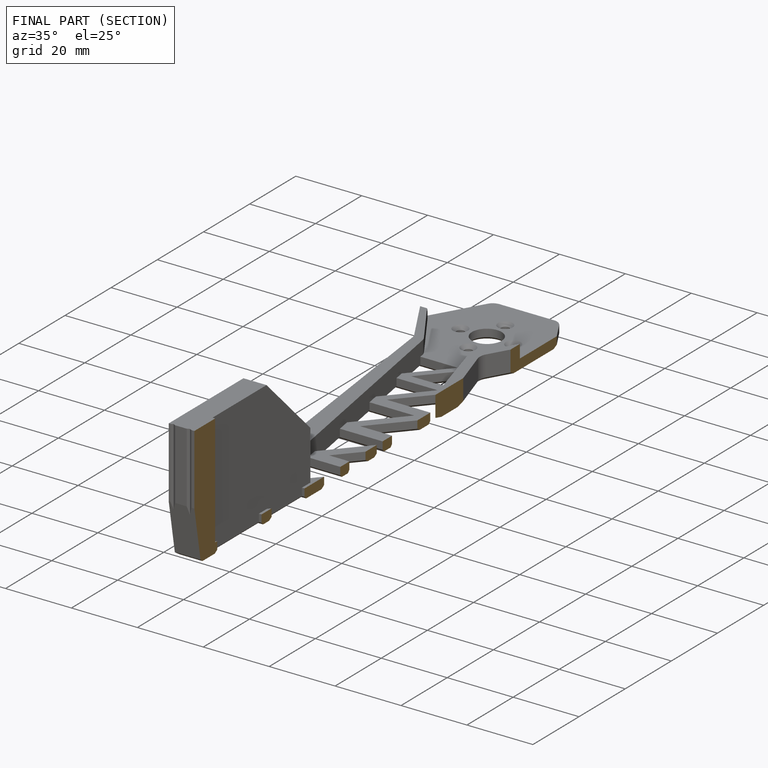
[diagram: finished part — half-section view (interior)]
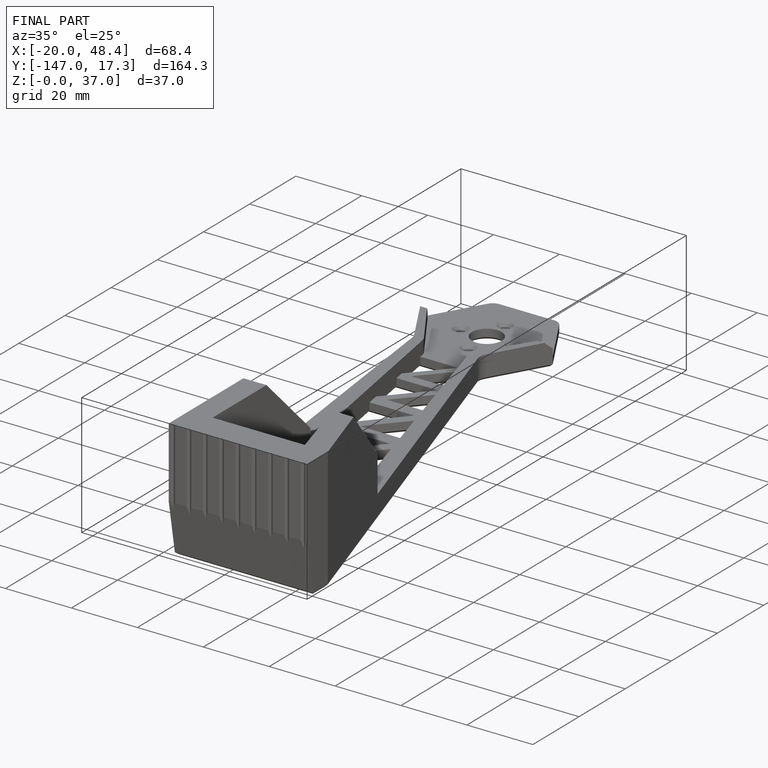
[diagram: finished part — iso view with bounding-box wireframe]
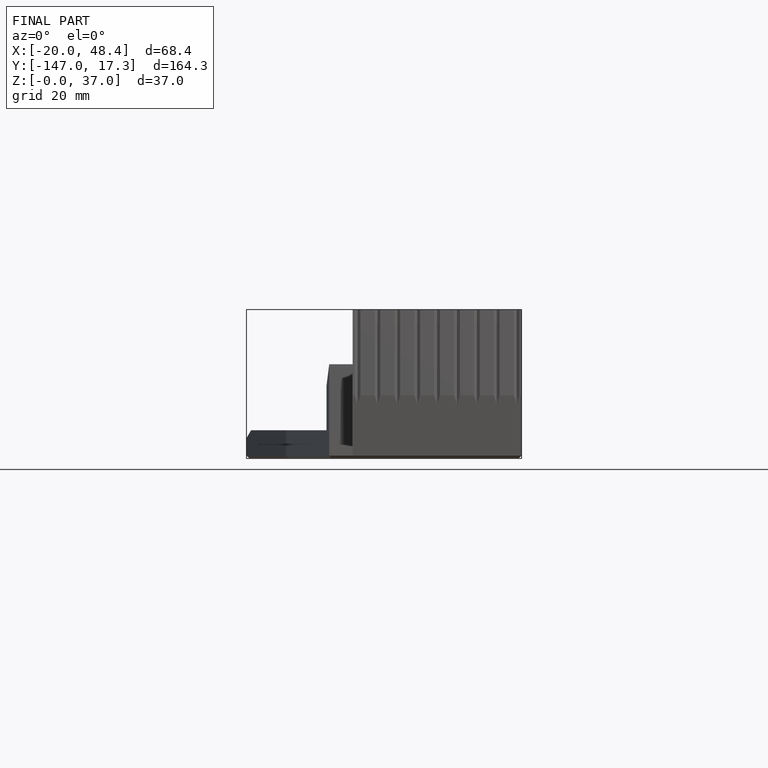
[diagram: finished part — front view with bounding-box wireframe]
